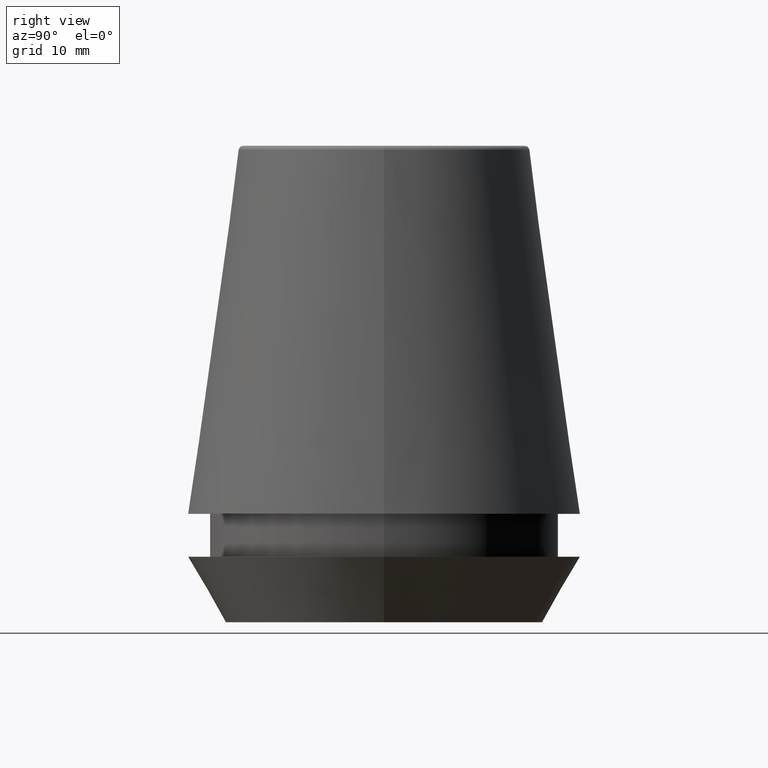
[diagram: clean part render]
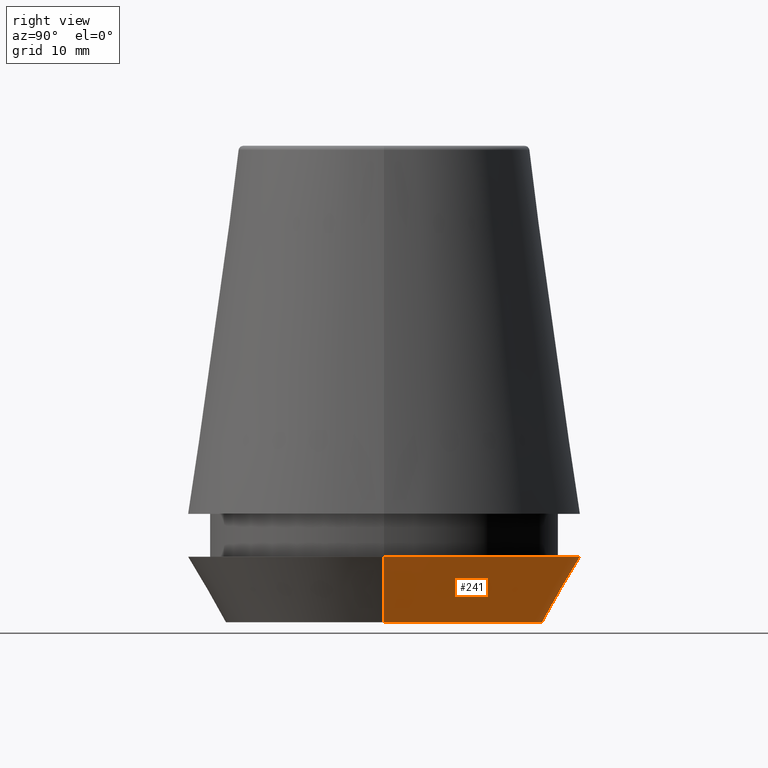
[diagram: same view with one face highlighted and labeled with its STEP entity id]
A machine part, right view. The second image highlights one B-rep face of the part: STEP entity #241.
In plain terms, the highlighted conical surface has half-angle 30 deg.
Its self-contained STEP definition (entity closure, byte-faithful):
#1 = EDGE_CURVE ( 'NONE', #342, #221, #379, .T. ) ;
#2 = CARTESIAN_POINT ( 'NONE',  ( 0.0000000000000000000, 0.0000000000000000000, 5.500000000000005300 ) ) ;
#3 = CARTESIAN_POINT ( 'NONE',  ( 16.50000000000000000, 0.0000000000000000000, 5.500000000000005300 ) ) ;
#19 = VECTOR ( 'NONE', #62, 999.9999999999998900 ) ;
#37 = AXIS2_PLACEMENT_3D ( 'NONE', #239, #76, #213 ) ;
#44 = EDGE_CURVE ( 'NONE', #342, #252, #174, .T. ) ;
#62 = DIRECTION ( 'NONE',  ( -0.4999999999999947300, 6.123233995736700700E-017, 0.8660254037844418200 ) ) ;
#68 = CARTESIAN_POINT ( 'NONE',  ( 13.32457351945710200, 0.0000000000000000000, 0.0000000000000000000 ) ) ;
#70 = CARTESIAN_POINT ( 'NONE',  ( 0.0000000000000000000, 0.0000000000000000000, 0.0000000000000000000 ) ) ;
#71 = LINE ( 'NONE', #153, #19 ) ;
#76 = DIRECTION ( 'NONE',  ( -0.0000000000000000000, -0.0000000000000000000, 1.000000000000000000 ) ) ;
#82 = FACE_OUTER_BOUND ( 'NONE', #271, .T. ) ;
#87 = VECTOR ( 'NONE', #353, 999.9999999999998900 ) ;
#95 = VERTEX_POINT ( 'NONE', #222 ) ;
#107 = ORIENTED_EDGE ( 'NONE', *, *, #181, .F. ) ;
#143 = DIRECTION ( 'NONE',  ( 1.000000000000000000, 0.0000000000000000000, 0.0000000000000000000 ) ) ;
#151 = CARTESIAN_POINT ( 'NONE',  ( 13.32457351945710200, 0.0000000000000000000, 0.0000000000000000000 ) ) ;
#153 = CARTESIAN_POINT ( 'NONE',  ( -13.32457351945710200, 1.631789631060672300E-015, 0.0000000000000000000 ) ) ;
#174 = LINE ( 'NONE', #68, #87 ) ;
#181 = EDGE_CURVE ( 'NONE', #252, #95, #281, .T. ) ;
#182 = ORIENTED_EDGE ( 'NONE', *, *, #319, .T. ) ;
#183 = AXIS2_PLACEMENT_3D ( 'NONE', #2, #244, #199 ) ;
#199 = DIRECTION ( 'NONE',  ( 1.000000000000000000, 0.0000000000000000000, 0.0000000000000000000 ) ) ;
#208 = ORIENTED_EDGE ( 'NONE', *, *, #1, .T. ) ;
#213 = DIRECTION ( 'NONE',  ( 1.000000000000000000, 0.0000000000000000000, 0.0000000000000000000 ) ) ;
#215 = AXIS2_PLACEMENT_3D ( 'NONE', #70, #264, #143 ) ;
#218 = ORIENTED_EDGE ( 'NONE', *, *, #44, .F. ) ;
#221 = VERTEX_POINT ( 'NONE', #226 ) ;
#222 = CARTESIAN_POINT ( 'NONE',  ( -16.50000000000000000, 2.020667218593133100E-015, 5.500000000000005300 ) ) ;
#226 = CARTESIAN_POINT ( 'NONE',  ( -13.32457351945710200, 1.826228424826902600E-015, 0.0000000000000000000 ) ) ;
#239 = CARTESIAN_POINT ( 'NONE',  ( 0.0000000000000000000, 0.0000000000000000000, 0.0000000000000000000 ) ) ;
#241 = ADVANCED_FACE ( 'NONE', ( #82 ), #369, .T. ) ;
#244 = DIRECTION ( 'NONE',  ( -0.0000000000000000000, -0.0000000000000000000, 1.000000000000000000 ) ) ;
#252 = VERTEX_POINT ( 'NONE', #3 ) ;
#264 = DIRECTION ( 'NONE',  ( -0.0000000000000000000, -0.0000000000000000000, 1.000000000000000000 ) ) ;
#271 = EDGE_LOOP ( 'NONE', ( #208, #182, #107, #218 ) ) ;
#281 = CIRCLE ( 'NONE', #183, 16.50000000000000000 ) ;
#319 = EDGE_CURVE ( 'NONE', #221, #95, #71, .T. ) ;
#342 = VERTEX_POINT ( 'NONE', #151 ) ;
#353 = DIRECTION ( 'NONE',  ( 0.4999999999999947300, 0.0000000000000000000, 0.8660254037844418200 ) ) ;
#369 = CONICAL_SURFACE ( 'NONE', #37, 13.32457351945710200, 0.5235987755982927100 ) ;
#379 = CIRCLE ( 'NONE', #215, 13.32457351945710200 ) ;